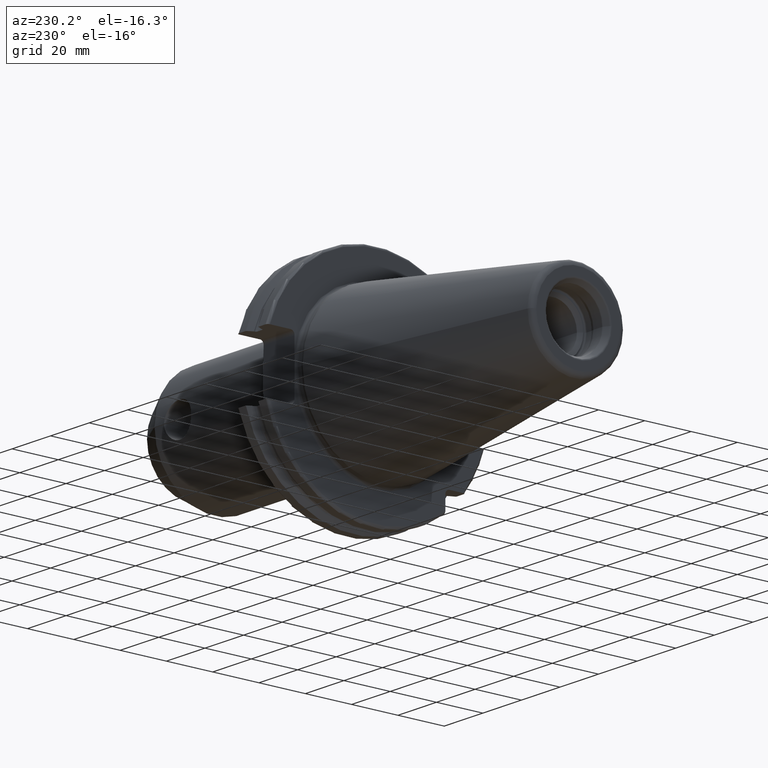
[diagram: clean part render]
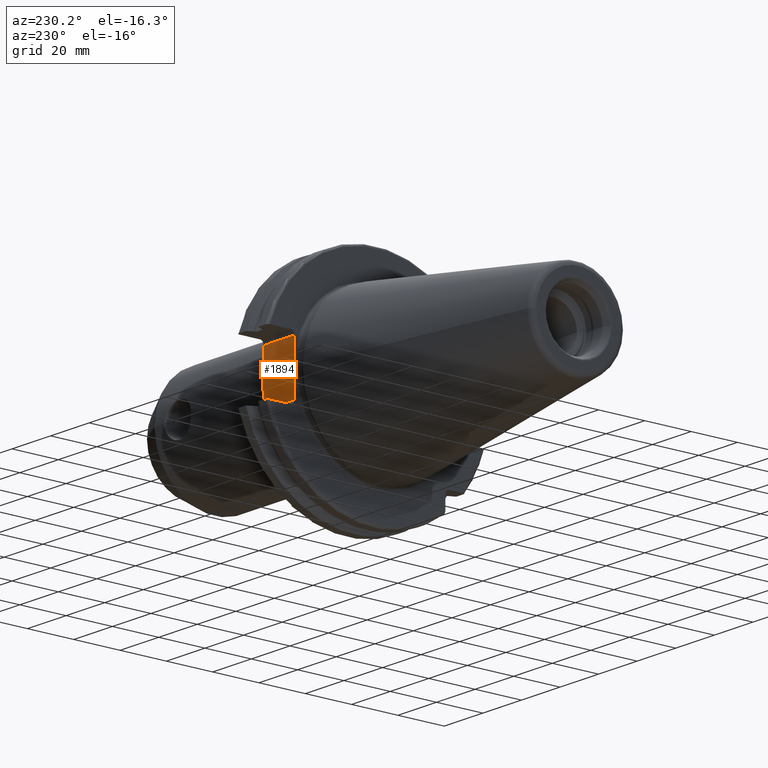
[diagram: same view with one face highlighted and labeled with its STEP entity id]
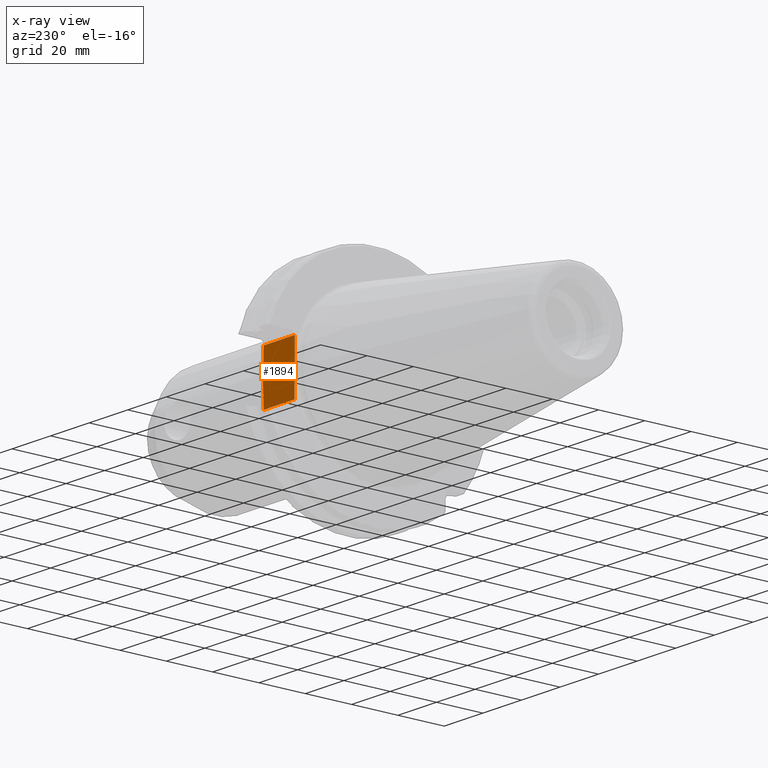
[diagram: x-ray of the same camera — body ghosted, the highlighted face saturated]
A machine part, auxiliary view. The second image highlights one B-rep face of the part: STEP entity #1894.
The next image is the same camera in x-ray: the body ghosted, the highlighted face saturated — about 0% of this face is hidden behind the body in this view.
In plain terms, the highlighted planar face has unit normal (0, -1, 0).
Its self-contained STEP definition (entity closure, byte-faithful):
#96=CARTESIAN_POINT('',(3.161444226151E0,3.53E1,-1.048836461230E-13));
#97=CARTESIAN_POINT('',(3.161444226151E0,3.53E1,-2.287557745851E-1));
#98=CARTESIAN_POINT('',(3.162734010751E0,3.53E1,-6.792530123044E-1));
#99=CARTESIAN_POINT('',(3.167877030309E0,3.53E1,-1.331895850106E0));
#100=CARTESIAN_POINT('',(3.175250793624E0,3.53E1,-1.967616454588E0));
#101=CARTESIAN_POINT('',(3.183670148061E0,3.53E1,-2.589717830169E0));
#102=CARTESIAN_POINT('',(3.191796133338E0,3.53E1,-3.202378106077E0));
#103=CARTESIAN_POINT('',(3.198127290791E0,3.53E1,-3.809054455619E0));
#104=CARTESIAN_POINT('',(3.2E0,3.53E1,-4.213157466434E0));
#105=CARTESIAN_POINT('',(3.2E0,3.53E1,-4.414818795828E0));
#122=DIRECTION('',(1.E0,0.E0,0.E0));
#123=VECTOR('',#122,1.600181073032E1);
#124=CARTESIAN_POINT('',(3.2E0,3.53E1,-1.115E1));
#125=LINE('',#124,#123);
#190=CARTESIAN_POINT('',(1.920181073032E1,3.53E1,-1.115E1));
#191=CARTESIAN_POINT('',(1.926050471587E1,3.53E1,-9.886078744663E0));
#192=CARTESIAN_POINT('',(1.939283691878E1,3.53E1,-7.376467118205E0));
#193=CARTESIAN_POINT('',(1.954880631260E1,3.53E1,-3.673437940852E0));
#194=CARTESIAN_POINT('',(1.958763517615E1,3.53E1,-1.221724168445E0));
#195=CARTESIAN_POINT('',(1.958765670263E1,3.53E1,-2.098548838337E-3));
#227=CARTESIAN_POINT('',(1.958765670263E1,3.53E1,-2.098548838337E-3));
#228=CARTESIAN_POINT('',(1.958766761726E1,3.53E1,6.162921605573E-1));
#229=CARTESIAN_POINT('',(1.957781488051E1,3.53E1,1.885528369381E0));
#230=CARTESIAN_POINT('',(1.953222918863E1,3.53E1,3.845614824928E0));
#231=CARTESIAN_POINT('',(1.945309081094E1,3.53E1,5.985331107193E0));
#232=CARTESIAN_POINT('',(1.933716233374E1,3.53E1,8.417060550433E0));
#233=CARTESIAN_POINT('',(1.924550816042E1,3.53E1,1.020901583974E1));
#234=CARTESIAN_POINT('',(1.920181073032E1,3.53E1,1.115E1));
#248=DIRECTION('',(1.E0,0.E0,0.E0));
#249=VECTOR('',#248,1.600181073032E1);
#250=CARTESIAN_POINT('',(3.2E0,3.53E1,1.115E1));
#251=LINE('',#250,#249);
#341=DIRECTION('',(0.E0,0.E0,-1.E0));
#342=VECTOR('',#341,6.735181204172E0);
#343=CARTESIAN_POINT('',(3.2E0,3.53E1,-4.414818795828E0));
#344=LINE('',#343,#342);
#345=DIRECTION('',(0.E0,0.E0,-1.E0));
#346=VECTOR('',#345,6.735181204172E0);
#347=CARTESIAN_POINT('',(3.2E0,3.53E1,1.115E1));
#348=LINE('',#347,#346);
#998=CARTESIAN_POINT('',(3.2E0,3.53E1,4.414818795828E0));
#999=CARTESIAN_POINT('',(3.2E0,3.53E1,4.213098987331E0));
#1000=CARTESIAN_POINT('',(3.198126239348E0,3.53E1,3.808889642023E0));
#1001=CARTESIAN_POINT('',(3.191792541487E0,3.53E1,3.202078124088E0));
#1002=CARTESIAN_POINT('',(3.183664786024E0,3.53E1,2.589329618622E0));
#1003=CARTESIAN_POINT('',(3.175245424270E0,3.53E1,1.967199873297E0));
#1004=CARTESIAN_POINT('',(3.167873523896E0,3.53E1,1.331533559003E0));
#1005=CARTESIAN_POINT('',(3.162733016852E0,3.53E1,6.790196322900E-1));
#1006=CARTESIAN_POINT('',(3.161444226151E0,3.53E1,2.286685292051E-1));
#1007=CARTESIAN_POINT('',(3.161444226151E0,3.53E1,-1.048836461230E-13));
#1587=VERTEX_POINT('',#998);
#1588=VERTEX_POINT('',#1007);
#1589=VERTEX_POINT('',#105);
#1646=CARTESIAN_POINT('',(3.2E0,3.53E1,1.115E1));
#1647=VERTEX_POINT('',#1646);
#1648=CARTESIAN_POINT('',(3.2E0,3.53E1,-1.115E1));
#1649=VERTEX_POINT('',#1648);
#1702=VERTEX_POINT('',#227);
#1703=VERTEX_POINT('',#234);
#1704=VERTEX_POINT('',#190);
#1872=CARTESIAN_POINT('',(1.905E1,3.53E1,1.29E1));
#1873=DIRECTION('',(0.E0,-1.E0,0.E0));
#1874=DIRECTION('',(0.E0,0.E0,-1.E0));
#1875=AXIS2_PLACEMENT_3D('',#1872,#1873,#1874);
#1876=PLANE('',#1875);
#1878=ORIENTED_EDGE('',*,*,#1877,.T.);
#1880=ORIENTED_EDGE('',*,*,#1879,.T.);
#1882=ORIENTED_EDGE('',*,*,#1881,.T.);
#1884=ORIENTED_EDGE('',*,*,#1883,.F.);
#1886=ORIENTED_EDGE('',*,*,#1885,.T.);
#1888=ORIENTED_EDGE('',*,*,#1887,.T.);
#1889=ORIENTED_EDGE('',*,*,#1860,.T.);
#1891=ORIENTED_EDGE('',*,*,#1890,.T.);
#1892=EDGE_LOOP('',(#1878,#1880,#1882,#1884,#1886,#1888,#1889,#1891));
#1893=FACE_OUTER_BOUND('',#1892,.F.);
#1894=ADVANCED_FACE('',(#1893),#1876,.F.);
#106=B_SPLINE_CURVE_WITH_KNOTS('',3,(#96,#97,#98,#99,#100,#101,#102,#103,#104,
#105),.UNSPECIFIED.,.F.,.F.,(4,1,1,1,1,1,1,4),(0.E0,1.428571428571E-1,
2.857142857143E-1,4.285714285714E-1,5.714285714286E-1,7.142857142857E-1,
8.571428571429E-1,1.E0),.UNSPECIFIED.);
#196=B_SPLINE_CURVE_WITH_KNOTS('',3,(#190,#191,#192,#193,#194,#195),
.UNSPECIFIED.,.F.,.F.,(4,1,1,4),(0.E0,3.333333333333E-1,6.666666666667E-1,1.E0),
.UNSPECIFIED.);
#235=B_SPLINE_CURVE_WITH_KNOTS('',3,(#227,#228,#229,#230,#231,#232,#233,#234),
.UNSPECIFIED.,.F.,.F.,(4,1,1,1,1,4),(0.E0,2.E-1,4.E-1,6.E-1,8.E-1,1.E0),
.UNSPECIFIED.);
#1008=B_SPLINE_CURVE_WITH_KNOTS('',3,(#998,#999,#1000,#1001,#1002,#1003,#1004,
#1005,#1006,#1007),.UNSPECIFIED.,.F.,.F.,(4,1,1,1,1,1,1,4),(0.E0,
1.428571428571E-1,2.857142857143E-1,4.285714285714E-1,5.714285714286E-1,
7.142857142857E-1,8.571428571429E-1,1.E0),.UNSPECIFIED.);
#1860=EDGE_CURVE('',#1588,#1589,#106,.T.);
#1877=EDGE_CURVE('',#1649,#1704,#125,.T.);
#1879=EDGE_CURVE('',#1704,#1702,#196,.T.);
#1881=EDGE_CURVE('',#1702,#1703,#235,.T.);
#1883=EDGE_CURVE('',#1647,#1703,#251,.T.);
#1885=EDGE_CURVE('',#1647,#1587,#348,.T.);
#1887=EDGE_CURVE('',#1587,#1588,#1008,.T.);
#1890=EDGE_CURVE('',#1589,#1649,#344,.T.);